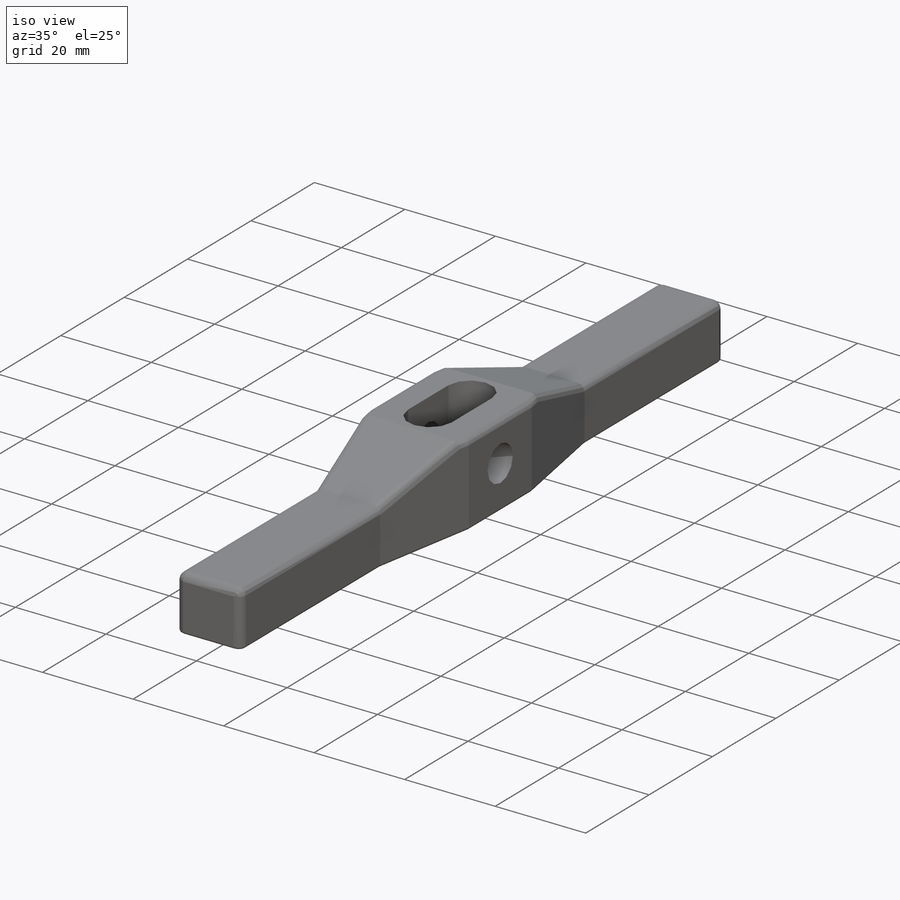
[diagram: iso view]
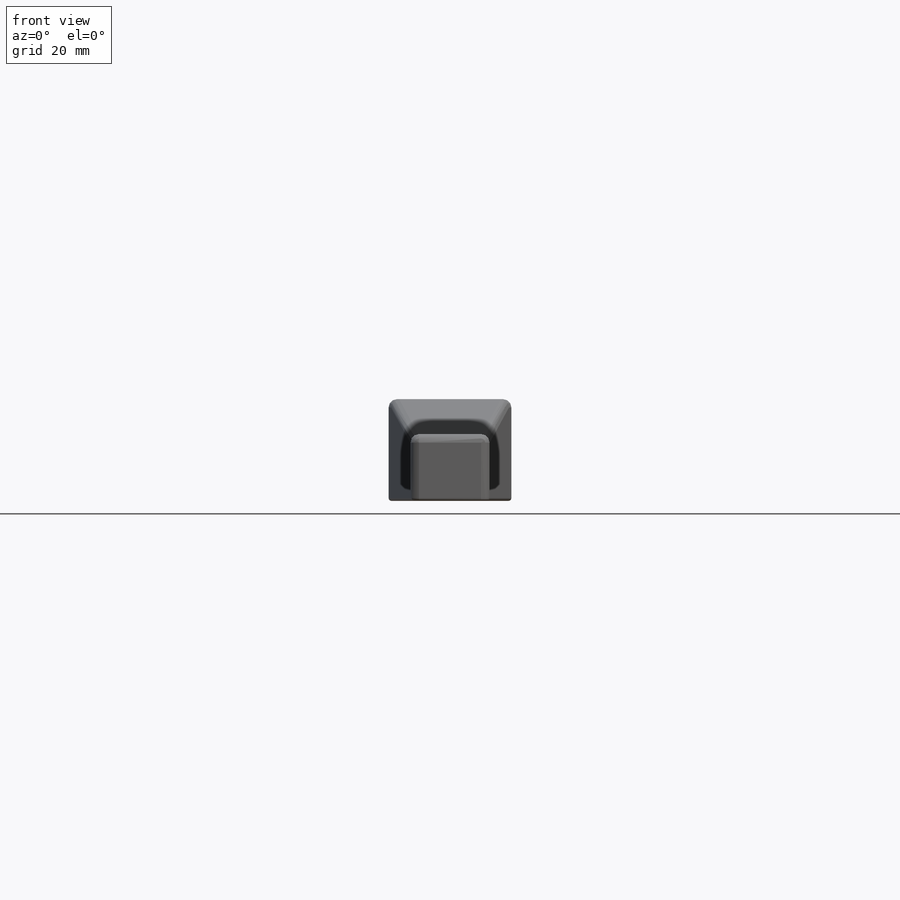
[diagram: front view]
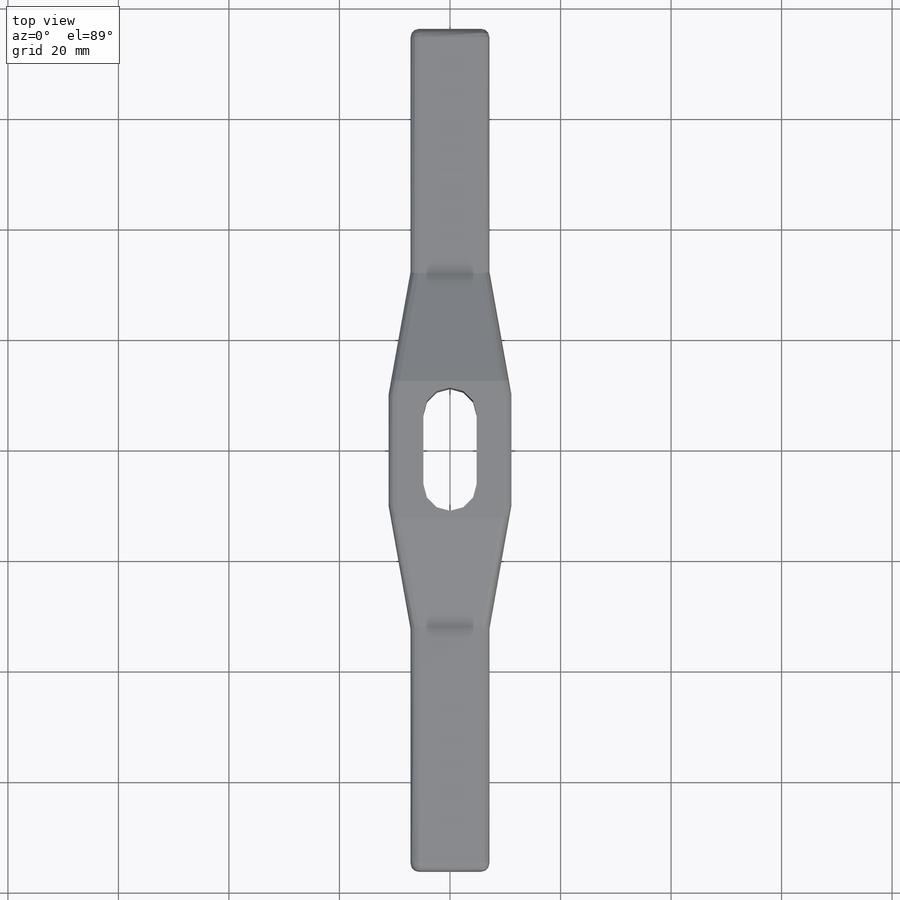
[diagram: top view]
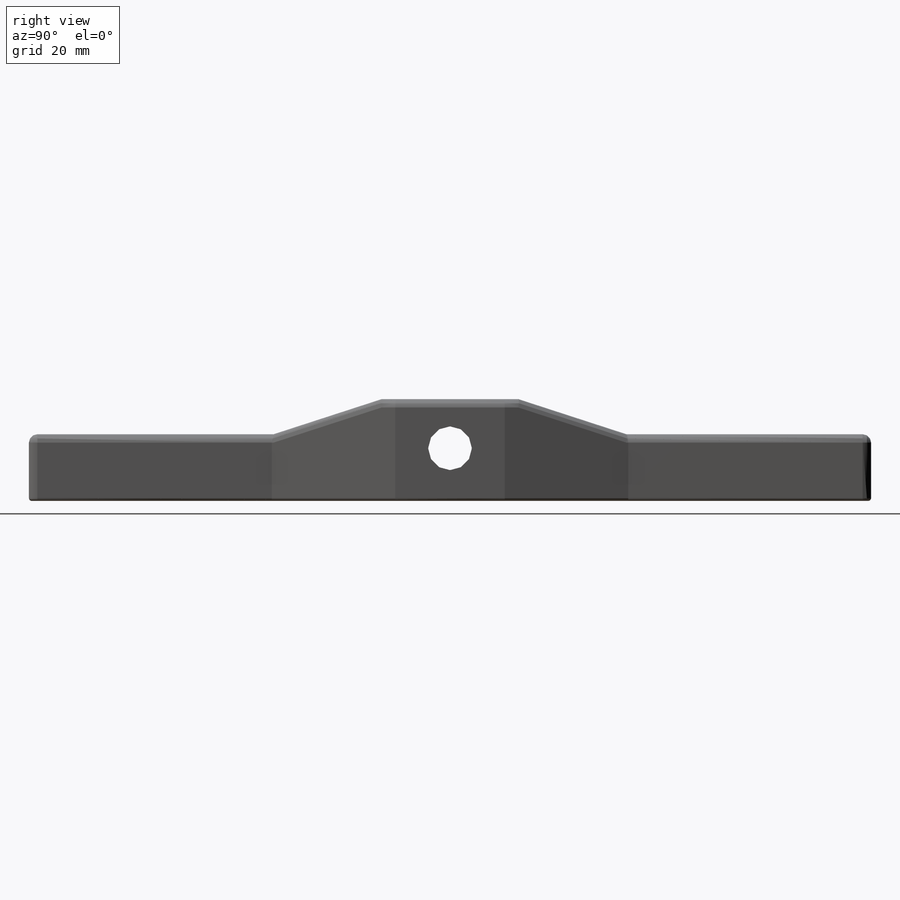
[diagram: right view]
SOLIDWORKS PART (.sldprt)
format: sldprt  version: not decoded by parser v0  size: 312,320 bytes
history: native  units: mm
features: sketch x3, fillet x3, cut_extrude x2, material x1, extrude x1 (+11 scaffold rows collapsed)
feature tree (21):
  scaffold x11  (default folders/planes/origin — collapsed)
  material  "Alloy Steel"
  sketch  "Sketch1"  dims[D1=14.2748mm D2=152.4mm D3=22.225mm D4=43.942mm D5=~19.805904mm D6=12.7mm D7=9.6266mm]
  extrude  "Extrude1"  Depth=18.415mm
  sketch  "Sketch2"  dims[c1.D1=12.3698mm c1.D2=~9.493125mm c2.D2=18.0deg c2.D3=12.065mm]
  cut_extrude  "Cut-Extrude1"  [1 undecoded]
  sketch  "Sketch3"  dims[D1=7.9121mm D2=9.525mm]
  cut_extrude  "Cut-Extrude2"  [1 undecoded]
  fillet  "Fillet1"  Radius=1.524mm
  fillet  "Fillet2"  Radius=0.508mm
  fillet  "Fillet3"  Radius=1.524mm
decode coverage: 7 of 9 modeling features carry decoded parameters
note: ~ marks probable driven/reference dimensions
note: 2 parameter values undecoded
note: suppression state not decoded; provenance and decode notes live in map.json
